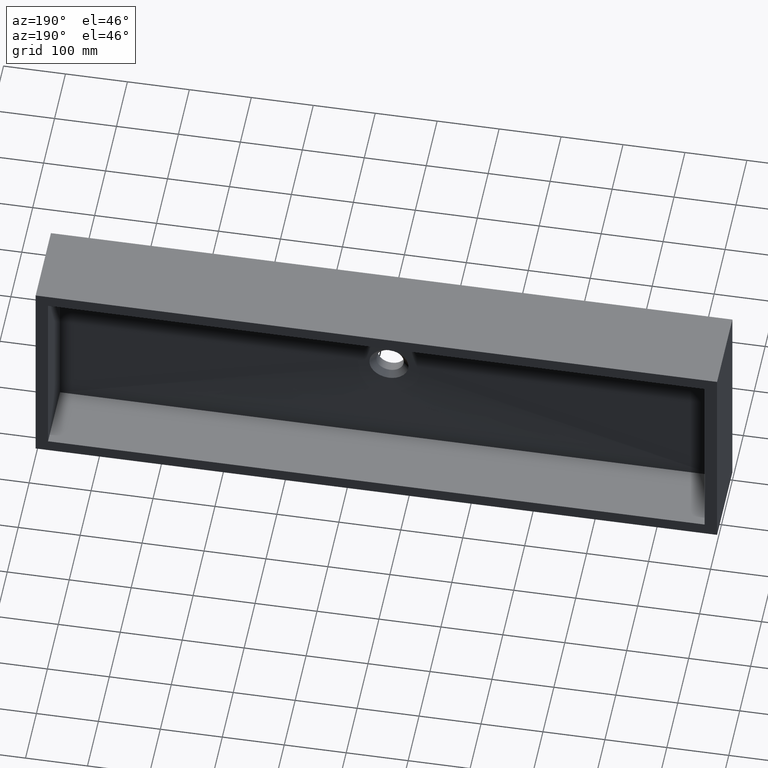
[diagram: clean part render]
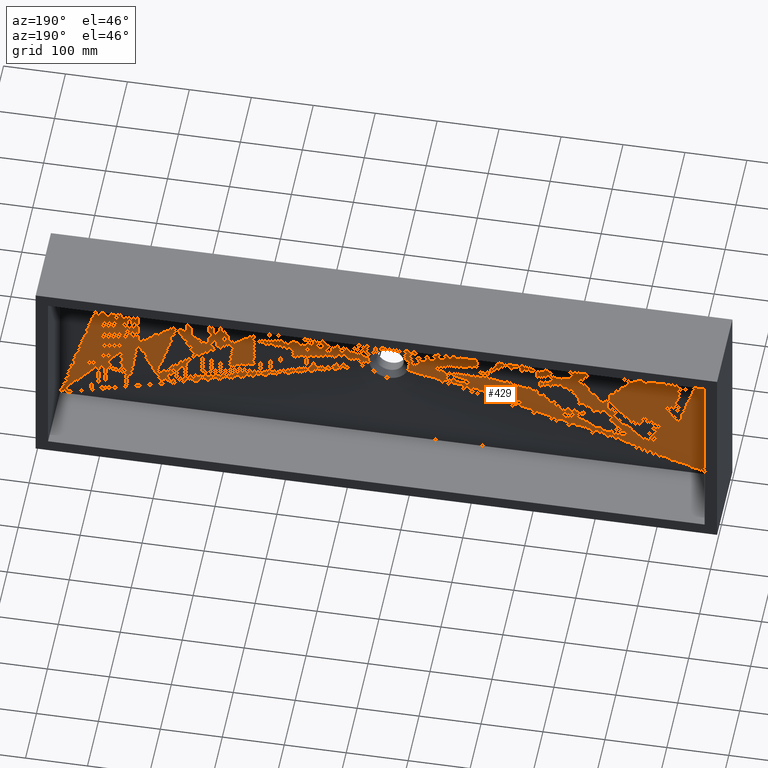
[diagram: same view with one face highlighted and labeled with its STEP entity id]
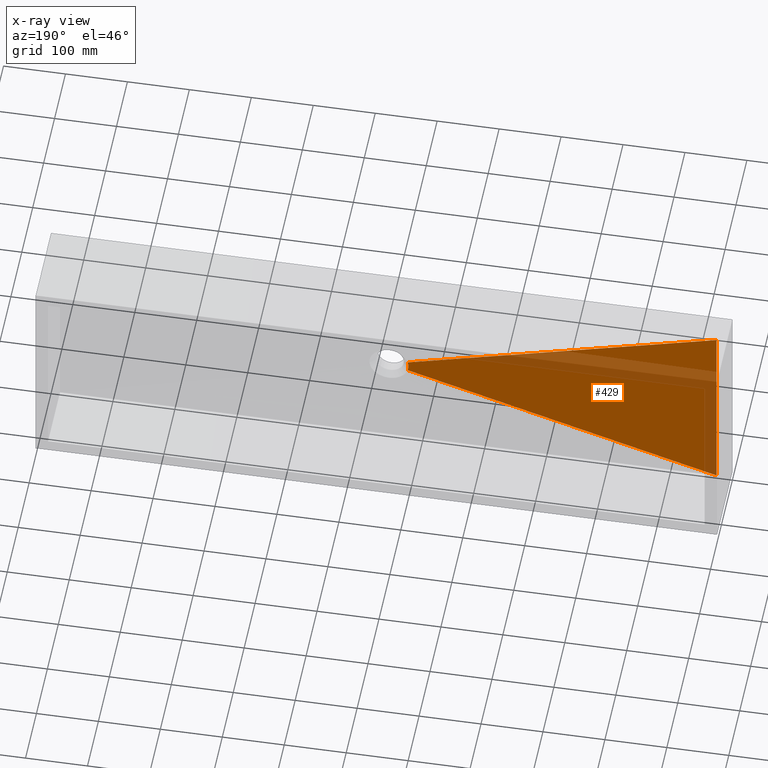
[diagram: x-ray of the same camera — body ghosted, the highlighted face saturated]
A machine part, auxiliary view. The second image highlights one B-rep face of the part: STEP entity #429.
The next image is the same camera in x-ray: the body ghosted, the highlighted face saturated — about 23% of this face is hidden behind the body in this view.
In plain terms, the highlighted face is a freeform B-spline surface patch.
Its self-contained STEP definition (entity closure, byte-faithful):
#44 = VERTEX_POINT ( 'NONE', #1063 ) ;
#62 = ORIENTED_EDGE ( 'NONE', *, *, #827, .T. ) ;
#82 = CARTESIAN_POINT ( 'NONE',  ( 519.7663969215753900, 25.00000000000000000, -183.8419027870864100 ) ) ;
#84 = EDGE_LOOP ( 'NONE', ( #62, #278, #640, #614 ) ) ;
#86 = VECTOR ( 'NONE', #153, 1000.000000000000100 ) ;
#153 = DIRECTION ( 'NONE',  ( -0.9597526761137362700, 0.009602012880673358900, -0.2806823864106209300 ) ) ;
#198 = CARTESIAN_POINT ( 'NONE',  ( 519.3527501231822000, 25.00000000000000400, -182.4274976054843800 ) ) ;
#202 = VECTOR ( 'NONE', #364, 1000.000000000000100 ) ;
#233 = CARTESIAN_POINT ( 'NONE',  ( 269.8831984607877500, 27.50000000000000400, -256.9209513935431900 ) ) ;
#256 = LINE ( 'NONE', #1100, #202 ) ;
#278 = ORIENTED_EDGE ( 'NONE', *, *, #923, .T. ) ;
#304 = CARTESIAN_POINT ( 'NONE',  ( 518.6082418723955200, 24.99999999999999300, -178.0076832610179200 ) ) ;
#354 = FACE_OUTER_BOUND ( 'NONE', #84, .T. ) ;
#364 = DIRECTION ( 'NONE',  ( 0.9597526761137362700, -0.009602012880673358900, -0.2806823864106210400 ) ) ;
#429 = ADVANCED_FACE ( 'NONE', ( #354 ), #770, .F. ) ;
#454 = CARTESIAN_POINT ( 'NONE',  ( 518.5000000000000000, 25.00000000000000400, -173.4961192181434600 ) ) ;
#473 = LINE ( 'NONE', #233, #86 ) ;
#479 = VECTOR ( 'NONE', #795, 1000.000000000000000 ) ;
#529 = VERTEX_POINT ( 'NONE', #659 ) ;
#532 = VERTEX_POINT ( 'NONE', #657 ) ;
#590 = CARTESIAN_POINT ( 'NONE',  ( 19.99999999999999600, 30.00000000000000000, -71.66666666666647200 ) ) ;
#592 = CARTESIAN_POINT ( 'NONE',  ( 518.6082418723955200, 24.99999999999999300, -178.0076832610179200 ) ) ;
#606 = CARTESIAN_POINT ( 'NONE',  ( 19.99999999999999600, 30.00000000000000000, -149.1666666666663200 ) ) ;
#614 = ORIENTED_EDGE ( 'NONE', *, *, #773, .T. ) ;
#615 = CARTESIAN_POINT ( 'NONE',  ( 518.4999999999998900, 25.00000000000000400, -176.5038807818566500 ) ) ;
#619 = CARTESIAN_POINT ( 'NONE',  ( 519.0346489087027100, 25.00000000000000400, -180.9695618543823600 ) ) ;
#620 = CARTESIAN_POINT ( 'NONE',  ( 518.6082418723955200, 25.00000000000000400, -171.9923167389820000 ) ) ;
#636 = VERTEX_POINT ( 'NONE', #82 ) ;
#640 = ORIENTED_EDGE ( 'NONE', *, *, #787, .F. ) ;
#657 = CARTESIAN_POINT ( 'NONE',  ( 20.00000000000000000, 30.00000000000002800, -20.00000000000000000 ) ) ;
#659 = CARTESIAN_POINT ( 'NONE',  ( 20.00000000000001800, 30.00000000000002800, -329.9999999999999400 ) ) ;
#664 = CARTESIAN_POINT ( 'NONE',  ( 518.4999999999998900, 25.00000000000000400, -176.5038807818566500 ) ) ;
#681 = CARTESIAN_POINT ( 'NONE',  ( 519.7663969215753900, 25.00000000000000000, -183.8419027870864100 ) ) ;
#687 = LINE ( 'NONE', #960, #479 ) ;
#712 = CARTESIAN_POINT ( 'NONE',  ( 518.6082418723955200, 25.00000000000000400, -171.9923167389820000 ) ) ;
#716 = CARTESIAN_POINT ( 'NONE',  ( 519.7663969215753900, 25.00000000000000000, -183.8419027870864100 ) ) ;
#770 = B_SPLINE_SURFACE_WITH_KNOTS ( 'NONE', 3, 1, ( 
 ( #681, #968 ),
 ( #1061, #1028 ),
 ( #619, #1031 ),
 ( #592, #1062 ),
 ( #615, #1045 ),
 ( #1029, #606 ),
 ( #620, #820 ),
 ( #1023, #590 ),
 ( #959, #948 ),
 ( #952, #957 ) ),
 .UNSPECIFIED., .F., .F., .F.,
 ( 4, 2, 2, 2, 4 ),
 ( 2, 2 ),
 ( 0.0000000000000000000, 0.2500000000000000000, 0.5000000000000000000, 0.7500000000000000000, 1.000000000000000000 ),
 ( 0.0000000000000000000, 1.000000000000000000 ),
 .UNSPECIFIED. ) ;
#773 = EDGE_CURVE ( 'NONE', #532, #44, #256, .T. ) ;
#787 = EDGE_CURVE ( 'NONE', #532, #529, #687, .T. ) ;
#792 = CARTESIAN_POINT ( 'NONE',  ( 519.0346489087027100, 25.00000000000000400, -169.0304381456176700 ) ) ;
#795 = DIRECTION ( 'NONE',  ( 1.343011723336875100E-016, 1.343011723336875100E-016, -1.000000000000000000 ) ) ;
#820 = CARTESIAN_POINT ( 'NONE',  ( 19.99999999999999600, 30.00000000000000000, -123.3333333333330200 ) ) ;
#827 = EDGE_CURVE ( 'NONE', #44, #636, #989, .T. ) ;
#838 = CARTESIAN_POINT ( 'NONE',  ( 519.7663969215753900, 25.00000000000000000, -166.1580972129135900 ) ) ;
#846 = CARTESIAN_POINT ( 'NONE',  ( 519.3527501231825500, 25.00000000000000400, -167.5725023945156200 ) ) ;
#923 = EDGE_CURVE ( 'NONE', #636, #529, #473, .T. ) ;
#948 = CARTESIAN_POINT ( 'NONE',  ( 19.99999999999999600, 30.00000000000000000, -45.83333333333323600 ) ) ;
#952 = CARTESIAN_POINT ( 'NONE',  ( 519.7663969215753900, 25.00000000000000000, -166.1580972129135900 ) ) ;
#955 = CARTESIAN_POINT ( 'NONE',  ( 519.0346489087027100, 25.00000000000000400, -180.9695618543823600 ) ) ;
#957 = CARTESIAN_POINT ( 'NONE',  ( 20.00000000000000000, 30.00000000000000400, -20.00000000000001800 ) ) ;
#959 = CARTESIAN_POINT ( 'NONE',  ( 519.3527501231825500, 25.00000000000000400, -167.5725023945156200 ) ) ;
#960 = CARTESIAN_POINT ( 'NONE',  ( 19.99999999999999600, 30.00000000000000000, -174.9999999999996300 ) ) ;
#968 = CARTESIAN_POINT ( 'NONE',  ( 20.00000000000000000, 30.00000000000000400, -329.9999999999999400 ) ) ;
#989 = B_SPLINE_CURVE_WITH_KNOTS ( 'NONE', 3,
 ( #838, #846, #792, #712, #454, #664, #304, #955, #198, #716 ),
 .UNSPECIFIED., .F., .F.,
 ( 4, 2, 2, 2, 4 ),
 ( 0.0000000000000000000, 0.2500000000000000000, 0.5000000000000000000, 0.7500000000000000000, 1.000000000000000000 ),
 .UNSPECIFIED. ) ;
#1023 = CARTESIAN_POINT ( 'NONE',  ( 519.0346489087027100, 25.00000000000000400, -169.0304381456176700 ) ) ;
#1028 = CARTESIAN_POINT ( 'NONE',  ( 19.99999999999999600, 30.00000000000000000, -304.1666666666664600 ) ) ;
#1029 = CARTESIAN_POINT ( 'NONE',  ( 518.5000000000000000, 25.00000000000000400, -173.4961192181434600 ) ) ;
#1031 = CARTESIAN_POINT ( 'NONE',  ( 19.99999999999999600, 30.00000000000000000, -278.3333333333330900 ) ) ;
#1045 = CARTESIAN_POINT ( 'NONE',  ( 19.99999999999999600, 30.00000000000000000, -200.8333333333329400 ) ) ;
#1061 = CARTESIAN_POINT ( 'NONE',  ( 519.3527501231822000, 25.00000000000000400, -182.4274976054843800 ) ) ;
#1062 = CARTESIAN_POINT ( 'NONE',  ( 19.99999999999999600, 30.00000000000000000, -226.6666666666662900 ) ) ;
#1063 = CARTESIAN_POINT ( 'NONE',  ( 519.7663969215753900, 25.00000000000000000, -166.1580972129135900 ) ) ;
#1100 = CARTESIAN_POINT ( 'NONE',  ( 269.8831984607877500, 27.50000000000000400, -93.07904860645678000 ) ) ;